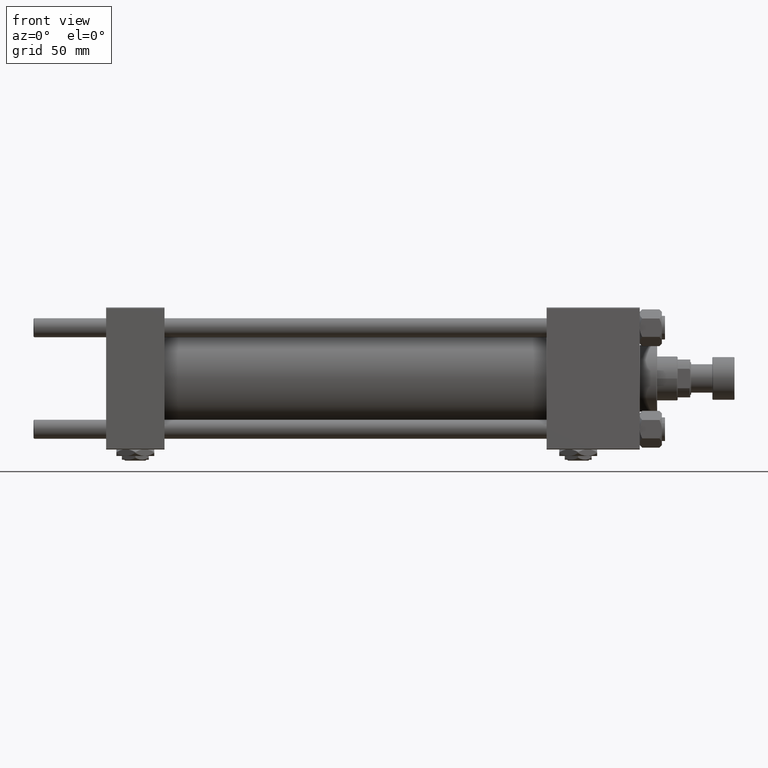
[diagram: clean part render]
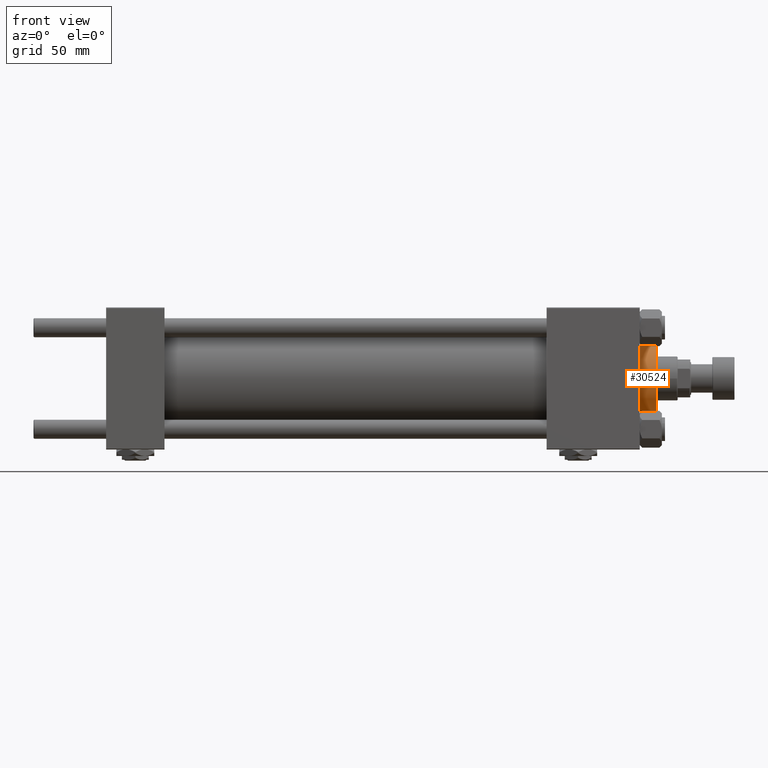
[diagram: same view with one face highlighted and labeled with its STEP entity id]
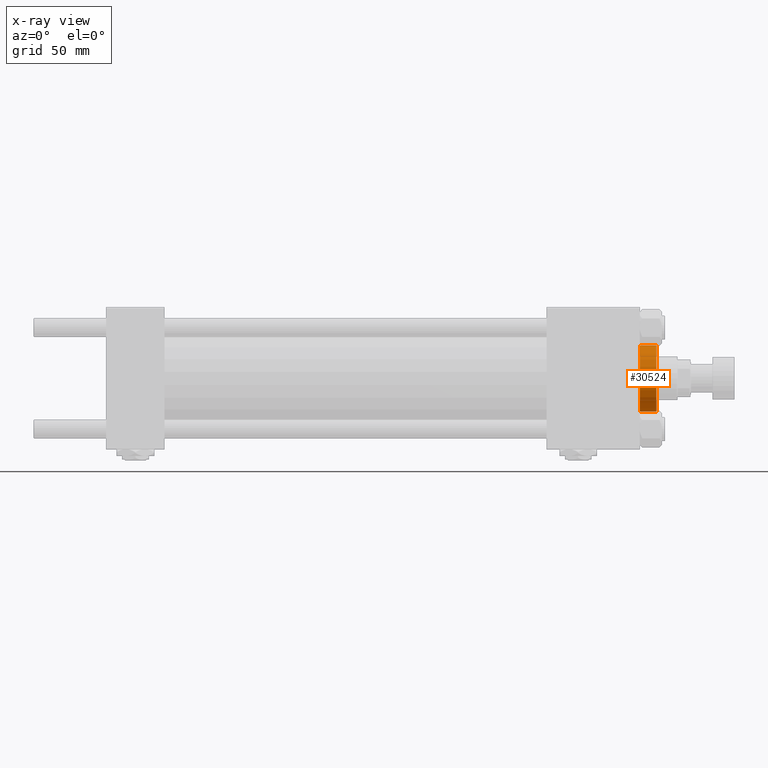
[diagram: x-ray of the same camera — body ghosted, the highlighted face saturated]
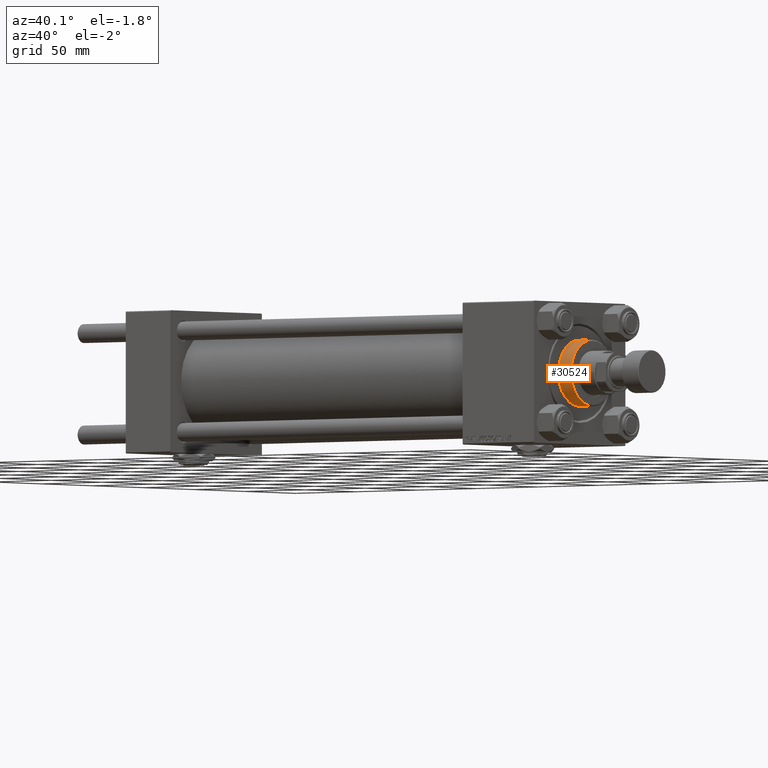
[diagram: same view with one face highlighted and labeled with its STEP entity id]
A machine part, front view. The second image highlights one B-rep face of the part: STEP entity #30524.
The next image is the same camera in x-ray: the body ghosted, the highlighted face saturated — about 0% of this face is hidden behind the body in this view.
A second angle (auxiliary view) of the same face is appended — the face is thin or edge-on in the first view.
In plain terms, the highlighted cylindrical surface (edge-blend (fillet) strip) has radius 21 mm, axis along (-1, -0, 0).
Its self-contained STEP definition (entity closure, byte-faithful):
#268 = ORIENTED_EDGE ( 'NONE', *, *, #46225, .T. ) ;
#2136 = EDGE_CURVE ( 'NONE', #42692, #28384, #36578, .T. ) ;
#2265 = ORIENTED_EDGE ( 'NONE', *, *, #2136, .T. ) ;
#2842 = CYLINDRICAL_SURFACE ( 'NONE', #18874, 21.00000000000000000 ) ;
#3043 = CIRCLE ( 'NONE', #35084, 21.00000000000000000 ) ;
#6786 = DIRECTION ( 'NONE',  ( -1.000000000000000000, 0.000000000000000000, 0.000000000000000000 ) ) ;
#7566 = CARTESIAN_POINT ( 'NONE',  ( 0.000000000000000000, 0.000000000000000000, 39.69999999999999574 ) ) ;
#8136 = CARTESIAN_POINT ( 'NONE',  ( 0.000000000000000000, 0.000000000000000000, 39.19999999999999574 ) ) ;
#8186 = CARTESIAN_POINT ( 'NONE',  ( 21.00000000000000000, 2.571758278209441661E-15, 39.69999999999999574 ) ) ;
#11021 = FACE_OUTER_BOUND ( 'NONE', #50843, .T. ) ;
#12154 = LINE ( 'NONE', #8186, #31241 ) ;
#13786 = AXIS2_PLACEMENT_3D ( 'NONE', #22175, #38313, #17442 ) ;
#14083 = CARTESIAN_POINT ( 'NONE',  ( -21.00000000000000000, 0.000000000000000000, 28.69999999999999929 ) ) ;
#15750 = DIRECTION ( 'NONE',  ( -0.000000000000000000, -0.000000000000000000, -1.000000000000000000 ) ) ;
#17442 = DIRECTION ( 'NONE',  ( 1.000000000000000000, 0.000000000000000000, 0.000000000000000000 ) ) ;
#18874 = AXIS2_PLACEMENT_3D ( 'NONE', #7566, #15750, #6786 ) ;
#19715 = DIRECTION ( 'NONE',  ( -0.000000000000000000, -0.000000000000000000, -1.000000000000000000 ) ) ;
#20600 = DIRECTION ( 'NONE',  ( -0.000000000000000000, -0.000000000000000000, -1.000000000000000000 ) ) ;
#21359 = CARTESIAN_POINT ( 'NONE',  ( 21.00000000000000000, 2.571758278209441661E-15, 39.19999999999999574 ) ) ;
#22175 = CARTESIAN_POINT ( 'NONE',  ( 0.000000000000000000, 0.000000000000000000, 28.69999999999999929 ) ) ;
#23683 = CARTESIAN_POINT ( 'NONE',  ( -21.00000000000000000, 0.000000000000000000, 39.69999999999999574 ) ) ;
#24627 = CARTESIAN_POINT ( 'NONE',  ( -21.00000000000000000, 0.000000000000000000, 39.19999999999999574 ) ) ;
#26756 = VERTEX_POINT ( 'NONE', #24627 ) ;
#27451 = DIRECTION ( 'NONE',  ( 0.000000000000000000, 0.000000000000000000, -1.000000000000000000 ) ) ;
#28384 = VERTEX_POINT ( 'NONE', #33727 ) ;
#30524 = ADVANCED_FACE ( 'NONE', ( #11021 ), #2842, .T. ) ;
#31241 = VECTOR ( 'NONE', #20600, 1000.000000000000000 ) ;
#33559 = ORIENTED_EDGE ( 'NONE', *, *, #49105, .F. ) ;
#33727 = CARTESIAN_POINT ( 'NONE',  ( 21.00000000000000000, 2.571758278209441661E-15, 28.69999999999999929 ) ) ;
#35084 = AXIS2_PLACEMENT_3D ( 'NONE', #8136, #27451, #43841 ) ;
#36112 = EDGE_CURVE ( 'NONE', #47213, #26756, #3043, .T. ) ;
#36578 = CIRCLE ( 'NONE', #13786, 21.00000000000000000 ) ;
#38313 = DIRECTION ( 'NONE',  ( 0.000000000000000000, 0.000000000000000000, 1.000000000000000000 ) ) ;
#42692 = VERTEX_POINT ( 'NONE', #14083 ) ;
#43792 = LINE ( 'NONE', #23683, #49027 ) ;
#43841 = DIRECTION ( 'NONE',  ( 1.000000000000000000, 0.000000000000000000, 0.000000000000000000 ) ) ;
#46225 = EDGE_CURVE ( 'NONE', #26756, #42692, #43792, .T. ) ;
#47213 = VERTEX_POINT ( 'NONE', #21359 ) ;
#48246 = ORIENTED_EDGE ( 'NONE', *, *, #36112, .T. ) ;
#49027 = VECTOR ( 'NONE', #19715, 1000.000000000000000 ) ;
#49105 = EDGE_CURVE ( 'NONE', #47213, #28384, #12154, .T. ) ;
#50843 = EDGE_LOOP ( 'NONE', ( #33559, #48246, #268, #2265 ) ) ;